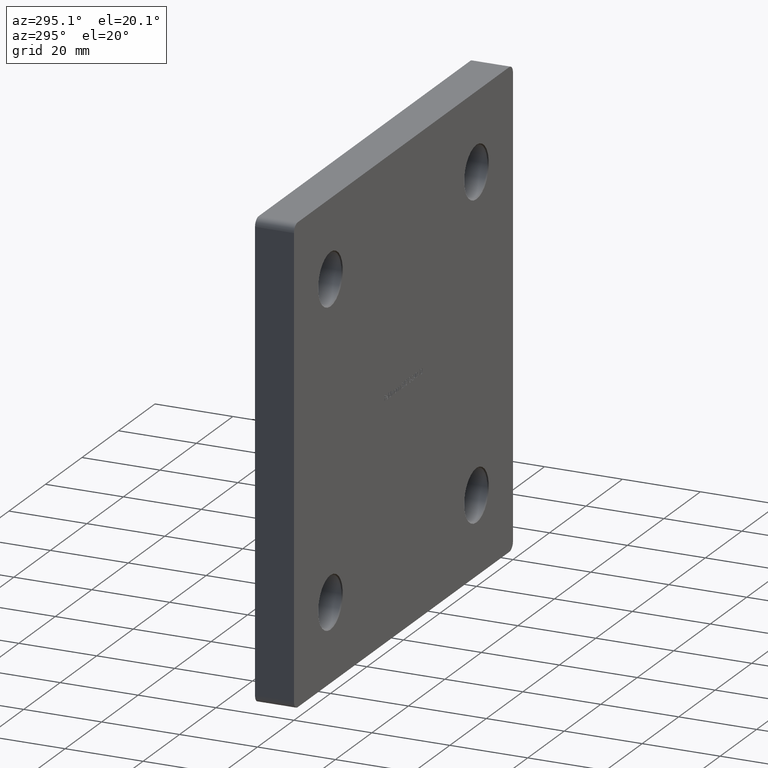
[diagram: clean part render]
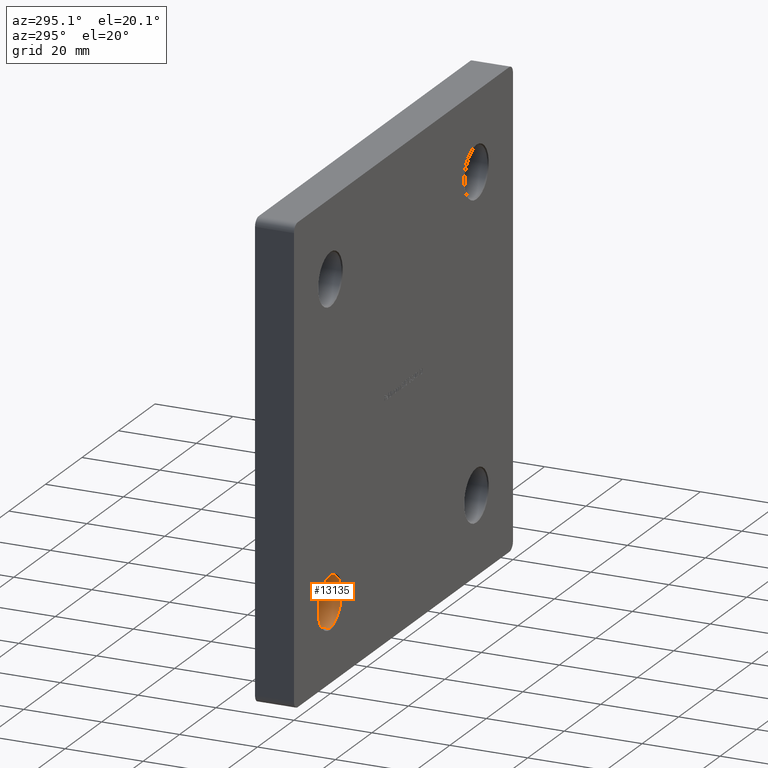
[diagram: same view with one face highlighted and labeled with its STEP entity id]
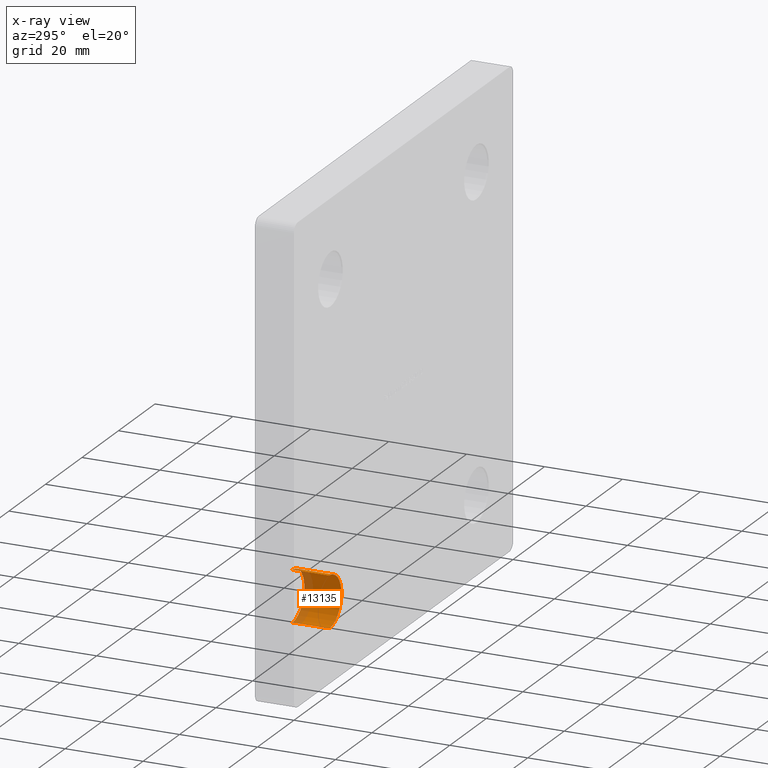
[diagram: x-ray of the same camera — body ghosted, the highlighted face saturated]
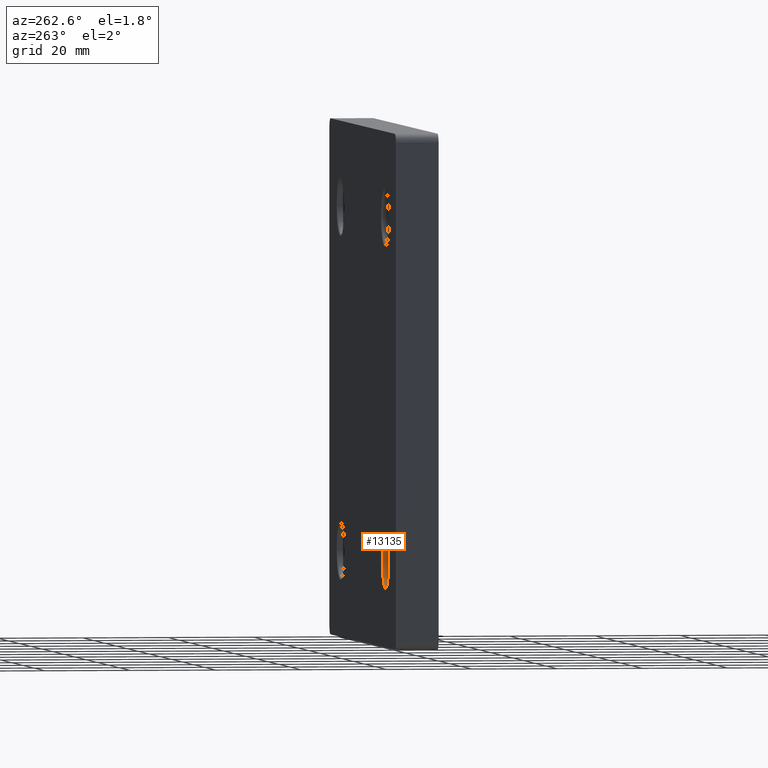
[diagram: same view with one face highlighted and labeled with its STEP entity id]
A machine part, auxiliary view. The second image highlights one B-rep face of the part: STEP entity #13135.
The next image is the same camera in x-ray: the body ghosted, the highlighted face saturated — about 23% of this face is hidden behind the body in this view.
A second angle (auxiliary view) of the same face is appended — the face is thin or edge-on in the first view.
In plain terms, the highlighted cylindrical surface (edge-blend (fillet) strip) has radius 6.5 mm, axis along (-0, 1, -0).
Its self-contained STEP definition (entity closure, byte-faithful):
#868 = VERTEX_POINT ( 'NONE', #5139 ) ;
#1521 = DIRECTION ( 'NONE',  ( 0.000000000000000000, 0.000000000000000000, 1.000000000000000000 ) ) ;
#1586 = CARTESIAN_POINT ( 'NONE',  ( -40.00000000000000000, 0.2499999999999854838, -33.50000000000000000 ) ) ;
#1701 = CARTESIAN_POINT ( 'NONE',  ( -40.00000000000000000, 0.2499999999999854838, -40.00000000000000000 ) ) ;
#1717 = EDGE_CURVE ( 'NONE', #10894, #868, #6913, .T. ) ;
#2561 = CIRCLE ( 'NONE', #6801, 6.499999999999999112 ) ;
#2897 = ORIENTED_EDGE ( 'NONE', *, *, #1717, .T. ) ;
#3243 = DIRECTION ( 'NONE',  ( -0.000000000000000000, 1.000000000000000000, -0.000000000000000000 ) ) ;
#3535 = CARTESIAN_POINT ( 'NONE',  ( -40.00000000000000000, 0.000000000000000000, -33.50000000000000000 ) ) ;
#3732 = FACE_OUTER_BOUND ( 'NONE', #8633, .T. ) ;
#4306 = CIRCLE ( 'NONE', #8915, 6.499999999999999112 ) ;
#5139 = CARTESIAN_POINT ( 'NONE',  ( -40.00000000000000000, 9.749999999999996447, -33.50000000000000000 ) ) ;
#5203 = VERTEX_POINT ( 'NONE', #5849 ) ;
#5402 = DIRECTION ( 'NONE',  ( 0.000000000000000000, 0.000000000000000000, 1.000000000000000000 ) ) ;
#5849 = CARTESIAN_POINT ( 'NONE',  ( -40.00000000000000000, 9.749999999999996447, -46.50000000000000000 ) ) ;
#6627 = CARTESIAN_POINT ( 'NONE',  ( -40.00000000000000000, 0.000000000000000000, -46.50000000000000000 ) ) ;
#6801 = AXIS2_PLACEMENT_3D ( 'NONE', #8039, #7948, #1521 ) ;
#6913 = LINE ( 'NONE', #3535, #10230 ) ;
#6972 = DIRECTION ( 'NONE',  ( -0.000000000000000000, -1.000000000000000000, -0.000000000000000000 ) ) ;
#7033 = CARTESIAN_POINT ( 'NONE',  ( -40.00000000000000000, 0.2499999999999854838, -46.50000000000000000 ) ) ;
#7262 = VECTOR ( 'NONE', #13046, 1000.000000000000000 ) ;
#7332 = EDGE_CURVE ( 'NONE', #11271, #10894, #4306, .T. ) ;
#7751 = DIRECTION ( 'NONE',  ( -0.000000000000000000, 1.000000000000000000, -0.000000000000000000 ) ) ;
#7903 = ORIENTED_EDGE ( 'NONE', *, *, #7332, .T. ) ;
#7948 = DIRECTION ( 'NONE',  ( 0.000000000000000000, 1.000000000000000000, 0.000000000000000000 ) ) ;
#8039 = CARTESIAN_POINT ( 'NONE',  ( -40.00000000000000000, 9.749999999999996447, -40.00000000000000000 ) ) ;
#8633 = EDGE_LOOP ( 'NONE', ( #11043, #7903, #2897, #9886 ) ) ;
#8915 = AXIS2_PLACEMENT_3D ( 'NONE', #1701, #6972, #13512 ) ;
#9507 = CARTESIAN_POINT ( 'NONE',  ( -40.00000000000000000, 0.000000000000000000, -40.00000000000000000 ) ) ;
#9886 = ORIENTED_EDGE ( 'NONE', *, *, #10527, .T. ) ;
#10230 = VECTOR ( 'NONE', #7751, 1000.000000000000000 ) ;
#10527 = EDGE_CURVE ( 'NONE', #868, #5203, #2561, .T. ) ;
#10770 = EDGE_CURVE ( 'NONE', #11271, #5203, #12925, .T. ) ;
#10894 = VERTEX_POINT ( 'NONE', #1586 ) ;
#11043 = ORIENTED_EDGE ( 'NONE', *, *, #10770, .F. ) ;
#11271 = VERTEX_POINT ( 'NONE', #7033 ) ;
#12925 = LINE ( 'NONE', #6627, #7262 ) ;
#13046 = DIRECTION ( 'NONE',  ( -0.000000000000000000, 1.000000000000000000, -0.000000000000000000 ) ) ;
#13071 = CYLINDRICAL_SURFACE ( 'NONE', #13420, 6.499999999999999112 ) ;
#13135 = ADVANCED_FACE ( 'NONE', ( #3732 ), #13071, .F. ) ;
#13420 = AXIS2_PLACEMENT_3D ( 'NONE', #9507, #3243, #5402 ) ;
#13512 = DIRECTION ( 'NONE',  ( 0.000000000000000000, 0.000000000000000000, 1.000000000000000000 ) ) ;